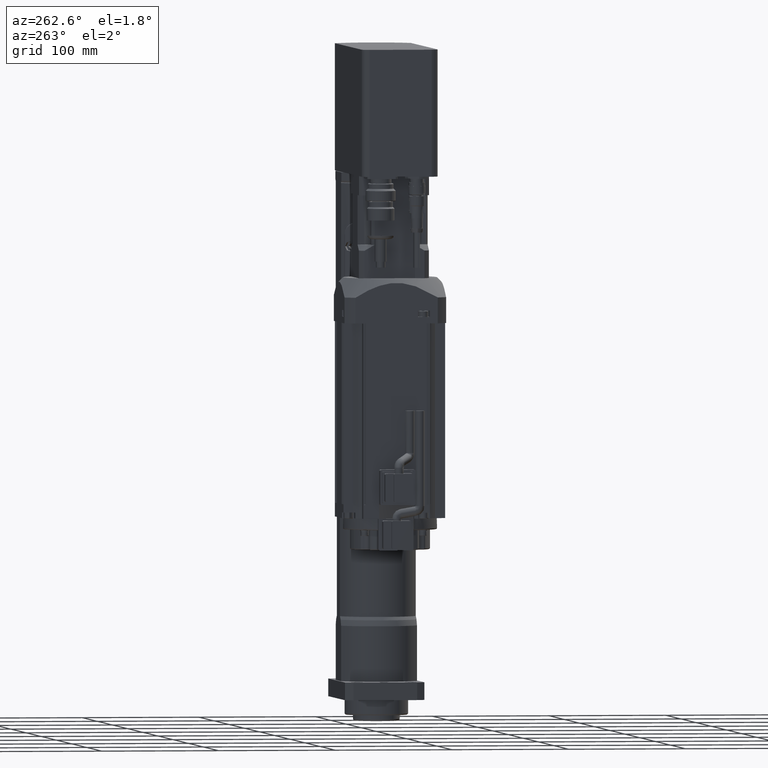
[diagram: clean part render]
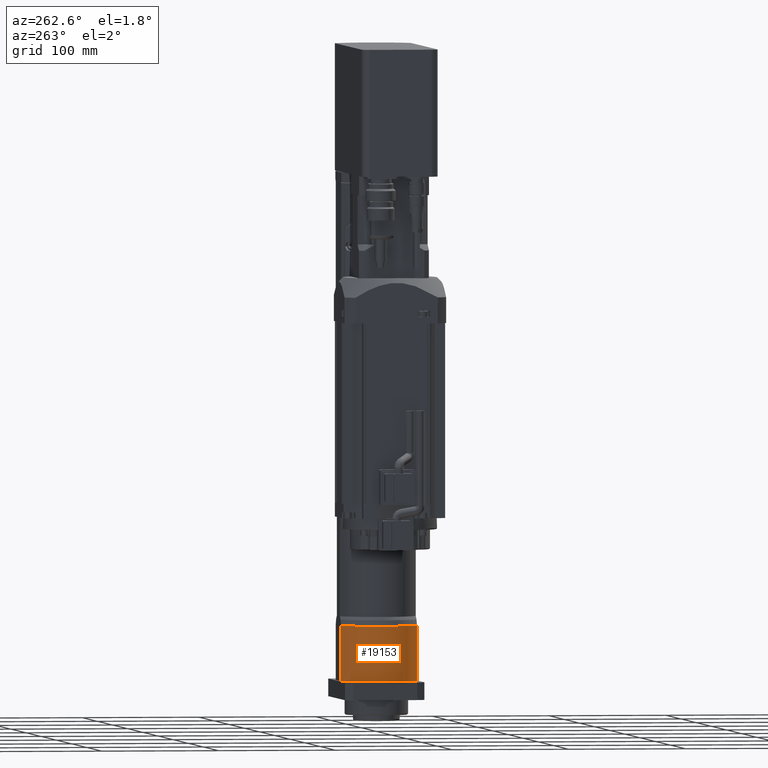
[diagram: same view with one face highlighted and labeled with its STEP entity id]
A machine part, auxiliary view. The second image highlights one B-rep face of the part: STEP entity #19153.
In plain terms, the highlighted cylindrical surface (partial cylindrical patch) has radius 37 mm, axis along (0, 0, 1).
Its self-contained STEP definition (entity closure, byte-faithful):
#2014=LINE('',#30525,#3631);
#2015=LINE('',#30528,#3632);
#3631=VECTOR('',#24868,10.);
#3632=VECTOR('',#24871,10.);
#4392=CYLINDRICAL_SURFACE('',#20753,37.);
#5164=FACE_OUTER_BOUND('',#6302,.T.);
#6302=EDGE_LOOP('',(#15186,#15187,#15188,#15189));
#7410=CIRCLE('',#20752,37.);
#7411=CIRCLE('',#20754,37.);
#8753=VERTEX_POINT('',#30493);
#8756=VERTEX_POINT('',#30509);
#8757=VERTEX_POINT('',#30524);
#8758=VERTEX_POINT('',#30526);
#11028=EDGE_CURVE('',#8756,#8753,#7410,.T.);
#11029=EDGE_CURVE('',#8756,#8757,#2014,.T.);
#11030=EDGE_CURVE('',#8758,#8757,#7411,.T.);
#11031=EDGE_CURVE('',#8758,#8753,#2015,.T.);
#15186=ORIENTED_EDGE('',*,*,#11028,.F.);
#15187=ORIENTED_EDGE('',*,*,#11029,.T.);
#15188=ORIENTED_EDGE('',*,*,#11030,.F.);
#15189=ORIENTED_EDGE('',*,*,#11031,.T.);
#19153=ADVANCED_FACE('',(#5164),#4392,.T.);
#20752=AXIS2_PLACEMENT_3D('',#30522,#24864,#24865);
#20753=AXIS2_PLACEMENT_3D('',#30523,#24866,#24867);
#20754=AXIS2_PLACEMENT_3D('',#30527,#24869,#24870);
#24864=DIRECTION('center_axis',(0.,0.,1.));
#24865=DIRECTION('ref_axis',(-1.,-9.99200722162641E-16,0.));
#24866=DIRECTION('center_axis',(0.,0.,1.));
#24867=DIRECTION('ref_axis',(-1.,0.,0.));
#24868=DIRECTION('',(0.,0.,-1.));
#24869=DIRECTION('center_axis',(0.,0.,-1.));
#24870=DIRECTION('ref_axis',(-1.,0.,0.));
#24871=DIRECTION('',(0.,0.,1.));
#30493=CARTESIAN_POINT('',(-17.6847391838274,-32.5,62.1243556529821));
#30509=CARTESIAN_POINT('',(-17.6847391838274,32.5,62.1243556529821));
#30522=CARTESIAN_POINT('Origin',(0.,0.,62.1243556529821));
#30523=CARTESIAN_POINT('Origin',(0.,0.,15.));
#30524=CARTESIAN_POINT('',(-17.6847391838274,32.5,15.));
#30525=CARTESIAN_POINT('',(-17.6847391838274,32.5,15.));
#30526=CARTESIAN_POINT('',(-17.6847391838273,-32.5,15.));
#30527=CARTESIAN_POINT('Origin',(0.,0.,15.));
#30528=CARTESIAN_POINT('',(-17.6847391838274,-32.5,15.));